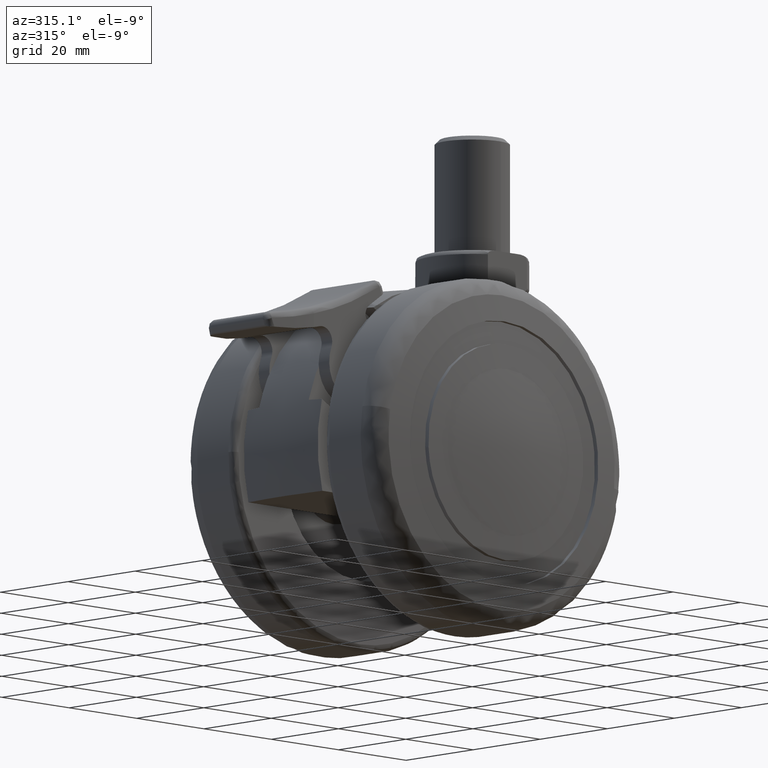
[diagram: clean part render]
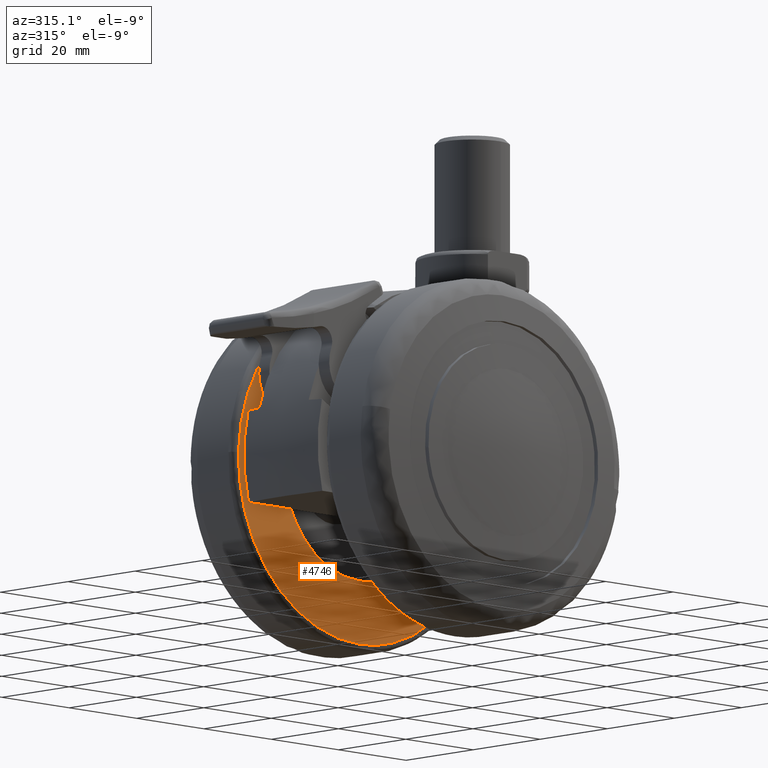
[diagram: same view with one face highlighted and labeled with its STEP entity id]
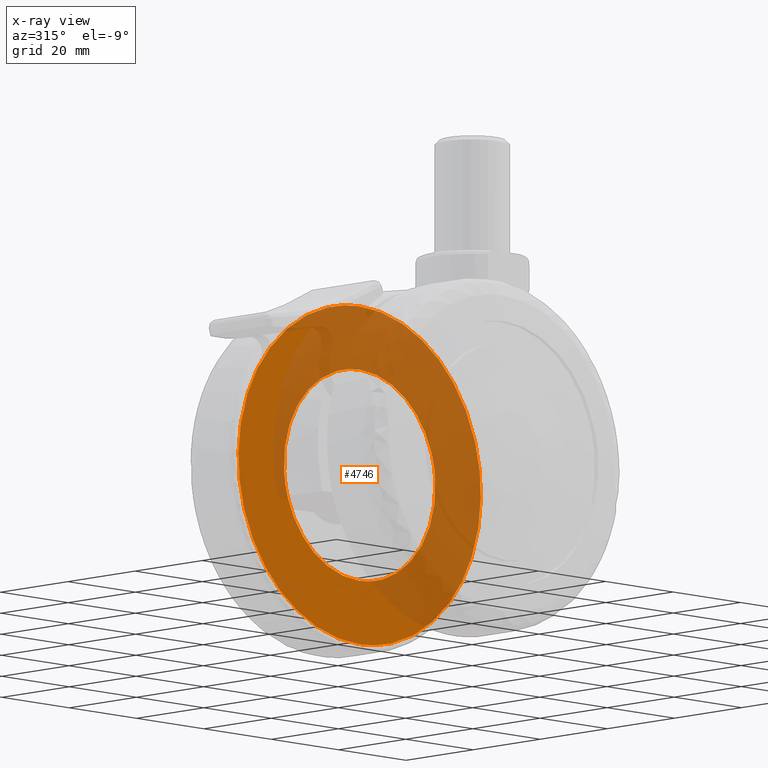
[diagram: x-ray of the same camera — body ghosted, the highlighted face saturated]
A machine part, auxiliary view. The second image highlights one B-rep face of the part: STEP entity #4746.
The next image is the same camera in x-ray: the body ghosted, the highlighted face saturated — about 59% of this face is hidden behind the body in this view.
In plain terms, the highlighted face is a freeform B-spline surface patch.
Its self-contained STEP definition (entity closure, byte-faithful):
#3957=CARTESIAN_POINT('',(22.430642877294360,13.500000000000000,1.765293207925290));
#3958=VERTEX_POINT('',#3957);
#3964=CARTESIAN_POINT('',(0.0,13.500000000000000,22.500000000000000));
#3965=VERTEX_POINT('',#3964);
#3966=CARTESIAN_POINT('',(0.0,13.500000000000000,22.500000000000000));
#3967=CARTESIAN_POINT('',(20.798819961297820,13.500000000000000,22.499999999999996));
#3968=CARTESIAN_POINT('',(22.430642877294364,13.500000000000007,1.765293207925289));
#3976=(BOUNDED_CURVE()B_SPLINE_CURVE(2,(#3966,#3967,#3968),.UNSPECIFIED.,.F.,.U.)B_SPLINE_CURVE_WITH_KNOTS((3,3),(0.0,0.236331579168274),.UNSPECIFIED.)CURVE()GEOMETRIC_REPRESENTATION_ITEM()RATIONAL_B_SPLINE_CURVE((1.0,0.723120332280552,0.969723937454896))REPRESENTATION_ITEM(''));
#3977=EDGE_CURVE('',#3965,#3958,#3976,.T.);
#3979=CARTESIAN_POINT('',(-22.430642877294360,13.500000000000000,-1.765293207925285));
#3980=VERTEX_POINT('',#3979);
#3981=CARTESIAN_POINT('',(-22.430642877294364,13.499999999999996,-1.765293207925285));
#3982=CARTESIAN_POINT('',(-22.500000000000000,13.500000000000002,-0.884009100132803));
#3983=CARTESIAN_POINT('',(-22.500000000000000,13.500000000000000,-1.653219E-015));
#3984=CARTESIAN_POINT('',(-22.500000000000000,13.500000000000000,22.500000000000000));
#3985=CARTESIAN_POINT('',(0.0,13.500000000000000,22.500000000000000));
#3993=(BOUNDED_CURVE()B_SPLINE_CURVE(2,(#3981,#3982,#3983,#3984,#3985),.UNSPECIFIED.,.F.,.U.)B_SPLINE_CURVE_WITH_KNOTS((3,2,3),(0.736331579168274,0.750000000000000,1.0),.UNSPECIFIED.)CURVE()GEOMETRIC_REPRESENTATION_ITEM()RATIONAL_B_SPLINE_CURVE((0.969723937454896,0.983986448905995,1.0,0.707106781186548,1.0))REPRESENTATION_ITEM(''));
#3994=EDGE_CURVE('',#3980,#3965,#3993,.T.);
#4074=CARTESIAN_POINT('',(0.0,13.500000000000000,-22.500000000000000));
#4075=VERTEX_POINT('',#4074);
#4076=CARTESIAN_POINT('',(0.0,13.500000000000000,-22.500000000000000));
#4077=CARTESIAN_POINT('',(-20.798819961297820,13.500000000000000,-22.499999999999996));
#4078=CARTESIAN_POINT('',(-22.430642877294364,13.499999999999996,-1.765293207925285));
#4086=(BOUNDED_CURVE()B_SPLINE_CURVE(2,(#4076,#4077,#4078),.UNSPECIFIED.,.F.,.U.)B_SPLINE_CURVE_WITH_KNOTS((3,3),(0.500000000000000,0.736331579168274),.UNSPECIFIED.)CURVE()GEOMETRIC_REPRESENTATION_ITEM()RATIONAL_B_SPLINE_CURVE((1.0,0.723120332280552,0.969723937454896))REPRESENTATION_ITEM(''));
#4087=EDGE_CURVE('',#4075,#3980,#4086,.T.);
#4089=CARTESIAN_POINT('',(22.430642877294364,13.500000000000007,1.765293207925289));
#4090=CARTESIAN_POINT('',(22.500000000000000,13.500000000000002,0.884009100132801));
#4091=CARTESIAN_POINT('',(22.500000000000000,13.500000000000000,-1.653219E-015));
#4092=CARTESIAN_POINT('',(22.500000000000000,13.500000000000000,-22.500000000000000));
#4093=CARTESIAN_POINT('',(0.0,13.500000000000000,-22.500000000000000));
#4101=(BOUNDED_CURVE()B_SPLINE_CURVE(2,(#4089,#4090,#4091,#4092,#4093),.UNSPECIFIED.,.F.,.U.)B_SPLINE_CURVE_WITH_KNOTS((3,2,3),(0.236331579168274,0.250000000000000,0.500000000000000),.UNSPECIFIED.)CURVE()GEOMETRIC_REPRESENTATION_ITEM()RATIONAL_B_SPLINE_CURVE((0.969723937454896,0.983986448905995,1.0,0.707106781186548,1.0))REPRESENTATION_ITEM(''));
#4102=EDGE_CURVE('',#3958,#4075,#4101,.T.);
#4440=CARTESIAN_POINT('',(35.988630830953433,13.500000000000000,-0.904683436759317));
#4441=VERTEX_POINT('',#4440);
#4455=CARTESIAN_POINT('',(0.0,13.500000000000000,-36.0));
#4456=VERTEX_POINT('',#4455);
#4457=CARTESIAN_POINT('',(35.988630830953419,13.500000000000000,-0.904683436759317));
#4458=CARTESIAN_POINT('',(35.106403541766163,13.500000000000000,-35.999999999999993));
#4459=CARTESIAN_POINT('',(0.0,13.500000000000000,-36.0));
#4467=(BOUNDED_CURVE()B_SPLINE_CURVE(2,(#4457,#4458,#4459),.UNSPECIFIED.,.F.,.U.)B_SPLINE_CURVE_WITH_KNOTS((3,3),(0.254420108233866,0.500000000000000),.UNSPECIFIED.)CURVE()GEOMETRIC_REPRESENTATION_ITEM()RATIONAL_B_SPLINE_CURVE((0.989826157673273,0.712285260099031,1.0))REPRESENTATION_ITEM(''));
#4468=EDGE_CURVE('',#4441,#4456,#4467,.T.);
#4470=CARTESIAN_POINT('',(-35.988630830953433,13.500000000000000,0.904683436759318));
#4471=VERTEX_POINT('',#4470);
#4472=CARTESIAN_POINT('',(0.0,13.500000000000000,-36.0));
#4473=CARTESIAN_POINT('',(-36.0,13.500000000000000,-36.0));
#4474=CARTESIAN_POINT('',(-36.0,13.500000000000000,-1.653219E-015));
#4475=CARTESIAN_POINT('',(-36.0,13.499999999999996,0.452413156819615));
#4476=CARTESIAN_POINT('',(-35.988630830953426,13.500000000000005,0.904683436759318));
#4484=(BOUNDED_CURVE()B_SPLINE_CURVE(2,(#4472,#4473,#4474,#4475,#4476),.UNSPECIFIED.,.F.,.U.)B_SPLINE_CURVE_WITH_KNOTS((3,2,3),(0.500000000000000,0.750000000000000,0.754420108233866),.UNSPECIFIED.)CURVE()GEOMETRIC_REPRESENTATION_ITEM()RATIONAL_B_SPLINE_CURVE((1.0,0.707106781186547,1.0,0.994821521087517,0.989826157673273))REPRESENTATION_ITEM(''));
#4485=EDGE_CURVE('',#4456,#4471,#4484,.T.);
#4528=CARTESIAN_POINT('',(0.0,13.500000000000000,36.0));
#4529=VERTEX_POINT('',#4528);
#4530=CARTESIAN_POINT('',(-35.988630830953419,13.500000000000000,0.904683436759318));
#4531=CARTESIAN_POINT('',(-35.106403541766163,13.500000000000000,35.999999999999993));
#4532=CARTESIAN_POINT('',(0.0,13.500000000000000,36.0));
#4540=(BOUNDED_CURVE()B_SPLINE_CURVE(2,(#4530,#4531,#4532),.UNSPECIFIED.,.F.,.U.)B_SPLINE_CURVE_WITH_KNOTS((3,3),(0.754420108233866,1.0),.UNSPECIFIED.)CURVE()GEOMETRIC_REPRESENTATION_ITEM()RATIONAL_B_SPLINE_CURVE((0.989826157673273,0.712285260099031,1.0))REPRESENTATION_ITEM(''));
#4541=EDGE_CURVE('',#4471,#4529,#4540,.T.);
#4543=CARTESIAN_POINT('',(0.0,13.500000000000000,36.0));
#4544=CARTESIAN_POINT('',(36.0,13.500000000000000,36.0));
#4545=CARTESIAN_POINT('',(36.0,13.500000000000000,-1.653219E-015));
#4546=CARTESIAN_POINT('',(36.000000000000007,13.500000000000004,-0.452413156819607));
#4547=CARTESIAN_POINT('',(35.988630830953426,13.500000000000002,-0.904683436759317));
#4555=(BOUNDED_CURVE()B_SPLINE_CURVE(2,(#4543,#4544,#4545,#4546,#4547),.UNSPECIFIED.,.F.,.U.)B_SPLINE_CURVE_WITH_KNOTS((3,2,3),(0.0,0.250000000000000,0.254420108233866),.UNSPECIFIED.)CURVE()GEOMETRIC_REPRESENTATION_ITEM()RATIONAL_B_SPLINE_CURVE((1.0,0.707106781186547,1.0,0.994821521087517,0.989826157673273))REPRESENTATION_ITEM(''));
#4556=EDGE_CURVE('',#4529,#4441,#4555,.T.);
#4729=CARTESIAN_POINT('',(39.583896262801836,13.500000000000000,39.596399860450028));
#4730=CARTESIAN_POINT('',(39.583896262801836,13.500000000000000,-39.596401791640517));
#4731=CARTESIAN_POINT('',(-39.583896906328697,13.500000000000000,39.596399860450028));
#4732=CARTESIAN_POINT('',(-39.583896906328697,13.500000000000000,-39.596401791640517));
#4733=B_SPLINE_SURFACE_WITH_KNOTS('',1,1,((#4729,#4731),(#4730,#4732)),.UNSPECIFIED.,.F.,.F.,.U.,(2,2),(2,2),(0.0,79.192801652090537),(0.0,79.167793169130533),.UNSPECIFIED.);
#4734=ORIENTED_EDGE('',*,*,#4541,.F.);
#4735=ORIENTED_EDGE('',*,*,#4485,.F.);
#4736=ORIENTED_EDGE('',*,*,#4468,.F.);
#4737=ORIENTED_EDGE('',*,*,#4556,.F.);
#4738=EDGE_LOOP('',(#4734,#4735,#4736,#4737));
#4739=FACE_OUTER_BOUND('',#4738,.T.);
#4740=ORIENTED_EDGE('',*,*,#4087,.T.);
#4741=ORIENTED_EDGE('',*,*,#3994,.T.);
#4742=ORIENTED_EDGE('',*,*,#3977,.T.);
#4743=ORIENTED_EDGE('',*,*,#4102,.T.);
#4744=EDGE_LOOP('',(#4740,#4741,#4742,#4743));
#4745=FACE_BOUND('',#4744,.T.);
#4746=ADVANCED_FACE('',(#4739,#4745),#4733,.F.);